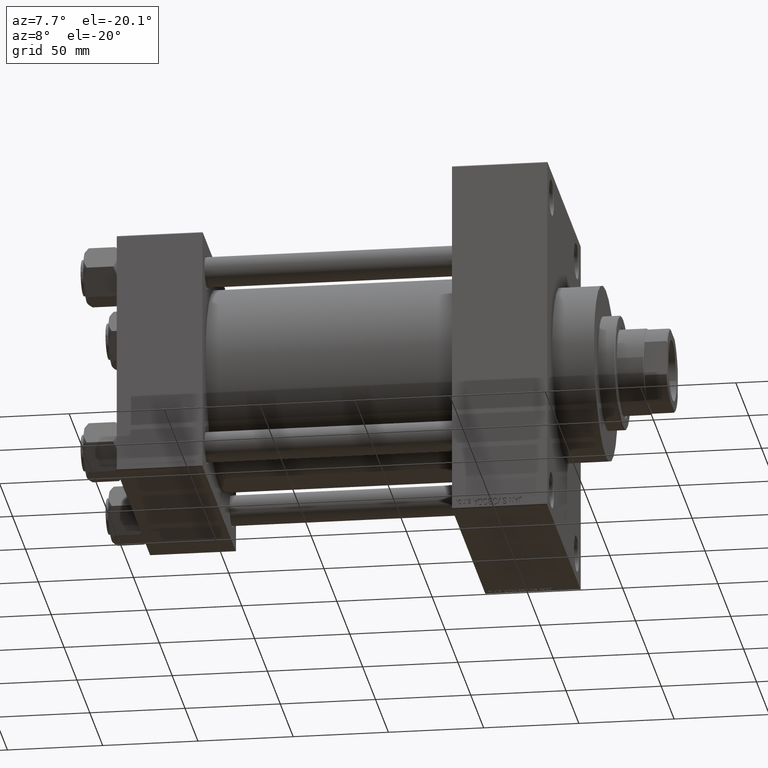
[diagram: clean part render]
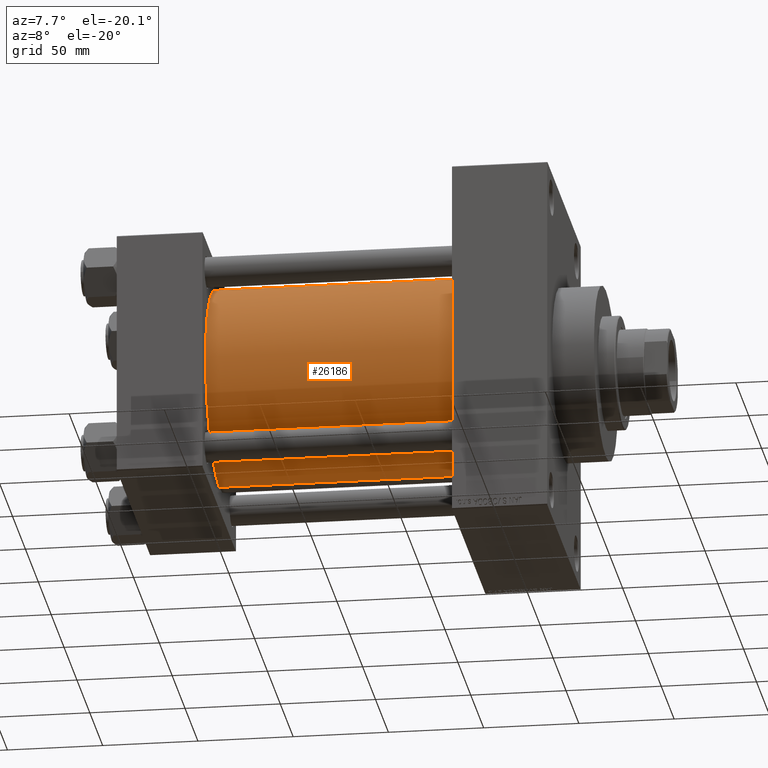
[diagram: same view with one face highlighted and labeled with its STEP entity id]
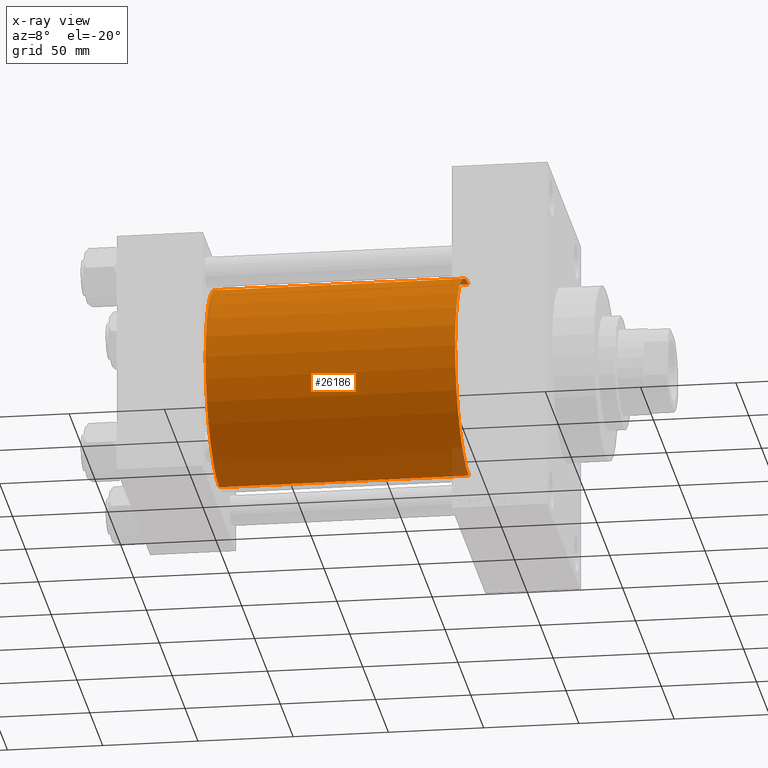
[diagram: x-ray of the same camera — body ghosted, the highlighted face saturated]
A machine part, auxiliary view. The second image highlights one B-rep face of the part: STEP entity #26186.
The next image is the same camera in x-ray: the body ghosted, the highlighted face saturated — about 1% of this face is hidden behind the body in this view.
In plain terms, the highlighted cylindrical surface (partial cylindrical patch) has radius 53 mm, axis along (-1, -0, -0).
Its self-contained STEP definition (entity closure, byte-faithful):
#865 = CARTESIAN_POINT ( 'NONE',  ( 176.0000000000000000, 3.888542821515762466E-15, -53.00000000000000711 ) ) ;
#2722 = ORIENTED_EDGE ( 'NONE', *, *, #15466, .F. ) ;
#6772 = EDGE_CURVE ( 'NONE', #22975, #16912, #35329, .T. ) ;
#9022 = DIRECTION ( 'NONE',  ( 1.000000000000000000, 0.000000000000000000, 0.000000000000000000 ) ) ;
#9290 = CARTESIAN_POINT ( 'NONE',  ( 176.0000000000000000, 3.888542821515762466E-15, -53.00000000000000711 ) ) ;
#9658 = CARTESIAN_POINT ( 'NONE',  ( 176.0000000000000000, -2.602085213965210642E-15, 53.00000000000000711 ) ) ;
#12120 = ORIENTED_EDGE ( 'NONE', *, *, #6772, .F. ) ;
#12642 = DIRECTION ( 'NONE',  ( 0.000000000000000000, 0.000000000000000000, -1.000000000000000000 ) ) ;
#14167 = VECTOR ( 'NONE', #31095, 1000.000000000000000 ) ;
#15466 = EDGE_CURVE ( 'NONE', #16912, #42046, #34590, .T. ) ;
#15568 = DIRECTION ( 'NONE',  ( -1.000000000000000000, -0.000000000000000000, -0.000000000000000000 ) ) ;
#16912 = VERTEX_POINT ( 'NONE', #9290 ) ;
#17241 = AXIS2_PLACEMENT_3D ( 'NONE', #36501, #31935, #36030 ) ;
#18790 = CYLINDRICAL_SURFACE ( 'NONE', #37273, 53.00000000000000711 ) ;
#19746 = FACE_OUTER_BOUND ( 'NONE', #37091, .T. ) ;
#20199 = CARTESIAN_POINT ( 'NONE',  ( 44.99999999999998579, 3.888542821515762466E-15, -53.00000000000000711 ) ) ;
#20735 = AXIS2_PLACEMENT_3D ( 'NONE', #22786, #9022, #12642 ) ;
#21635 = EDGE_CURVE ( 'NONE', #27408, #42046, #42643, .T. ) ;
#22786 = CARTESIAN_POINT ( 'NONE',  ( 176.0000000000000000, -2.602085213965210642E-15, 0.000000000000000000 ) ) ;
#22975 = VERTEX_POINT ( 'NONE', #38715 ) ;
#26186 = ADVANCED_FACE ( 'NONE', ( #19746 ), #18790, .T. ) ;
#27408 = VERTEX_POINT ( 'NONE', #36760 ) ;
#27960 = LINE ( 'NONE', #9658, #14167 ) ;
#30800 = DIRECTION ( 'NONE',  ( -1.000000000000000000, -0.000000000000000000, -0.000000000000000000 ) ) ;
#31095 = DIRECTION ( 'NONE',  ( -1.000000000000000000, -0.000000000000000000, -0.000000000000000000 ) ) ;
#31935 = DIRECTION ( 'NONE',  ( 1.000000000000000000, -0.000000000000000000, 0.000000000000000000 ) ) ;
#32216 = EDGE_CURVE ( 'NONE', #22975, #27408, #27960, .T. ) ;
#32521 = ORIENTED_EDGE ( 'NONE', *, *, #32216, .T. ) ;
#34418 = CARTESIAN_POINT ( 'NONE',  ( 176.0000000000000000, -2.602085213965210642E-15, 0.000000000000000000 ) ) ;
#34590 = LINE ( 'NONE', #865, #40895 ) ;
#35329 = CIRCLE ( 'NONE', #20735, 53.00000000000000711 ) ;
#36030 = DIRECTION ( 'NONE',  ( 0.000000000000000000, 0.000000000000000000, 1.000000000000000000 ) ) ;
#36501 = CARTESIAN_POINT ( 'NONE',  ( 44.99999999999998579, -2.602085213965210642E-15, 0.000000000000000000 ) ) ;
#36760 = CARTESIAN_POINT ( 'NONE',  ( 44.99999999999998579, -2.602085213965210642E-15, 53.00000000000000711 ) ) ;
#37091 = EDGE_LOOP ( 'NONE', ( #2722, #12120, #32521, #40033 ) ) ;
#37273 = AXIS2_PLACEMENT_3D ( 'NONE', #34418, #30800, #45508 ) ;
#38715 = CARTESIAN_POINT ( 'NONE',  ( 176.0000000000000000, -2.602085213965210642E-15, 53.00000000000000711 ) ) ;
#40033 = ORIENTED_EDGE ( 'NONE', *, *, #21635, .T. ) ;
#40895 = VECTOR ( 'NONE', #15568, 1000.000000000000000 ) ;
#42046 = VERTEX_POINT ( 'NONE', #20199 ) ;
#42643 = CIRCLE ( 'NONE', #17241, 53.00000000000000711 ) ;
#45508 = DIRECTION ( 'NONE',  ( 0.000000000000000000, 0.000000000000000000, 1.000000000000000000 ) ) ;